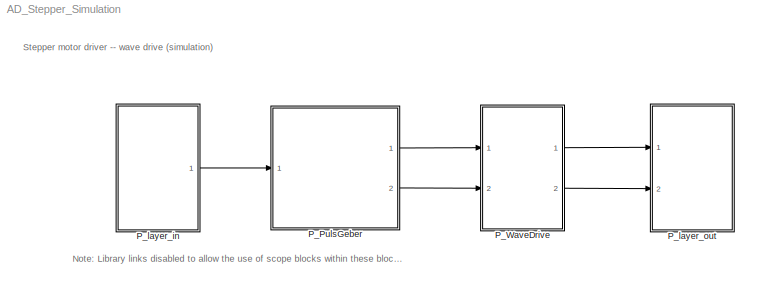
MODEL AD_Stepper_Simulation
KIND model
CONFIG InitFcn = Ts = 0.01;      % model sample time\nTmax = 0.5;   % maximum time per \"tick\"
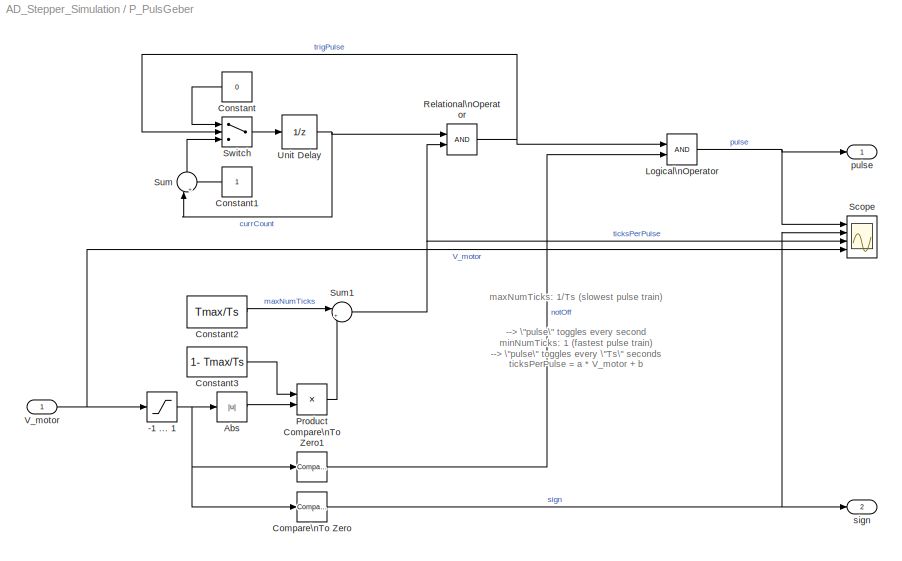
BLOCK [SubSystem] P_PulsGeber
  AncestorBlock = AD_Stepper_motor_lib/P_PulsGeber
  Ports = [1, 2]
  RequestExecContextInheritance = off
  SID = 133
  SystemSampleTime = Ts
  TreatAsAtomicUnit = on
BLOCK [Saturate] P_PulsGeber/-1 ... 1
  InputPortMap = u0
  LowerLimit = -1
  Ports = [1, 1]
  SID = 133:91
  UpperLimit = 1
BLOCK [Abs] P_PulsGeber/Abs
  SID = 133:92
  SaturateOnIntegerOverflow = off
BLOCK [Reference] P_PulsGeber/Compare\nTo Zero  REF=simulink/Logic and Bit\nOperations/Compare\nTo Zero
  FunctionWithSeparateData = off
  LogicOutDataTypeMode = boolean
  Ports = [1, 1]
  RTWMemSecDataConstants = Inherit from model
  RTWMemSecDataInternal = Inherit from model
  RTWMemSecDataParameters = Inherit from model
  RTWMemSecFuncExecute = Inherit from model
  RTWMemSecFuncInitTerm = Inherit from model
  SID = 133:93
  ShowPortLabels = FromPortIcon
  SourceBlock = simulink/Logic and Bit\nOperations/Compare\nTo Zero
  SourceProductBaseCode = SL
  SourceProductName = Simulink
  SourceType = Compare To Zero
  SystemSampleTime = -1
  ZeroCross = off
  relop = >=
BLOCK [Reference] P_PulsGeber/Compare\nTo Zero1  REF=simulink/Logic and Bit\nOperations/Compare\nTo Zero
  FunctionWithSeparateData = off
  LogicOutDataTypeMode = boolean
  Ports = [1, 1]
  RTWMemSecDataConstants = Inherit from model
  RTWMemSecDataInternal = Inherit from model
  RTWMemSecDataParameters = Inherit from model
  RTWMemSecFuncExecute = Inherit from model
  RTWMemSecFuncInitTerm = Inherit from model
  SID = 133:94
  ShowPortLabels = FromPortIcon
  SourceBlock = simulink/Logic and Bit\nOperations/Compare\nTo Zero
  SourceProductBaseCode = SL
  SourceProductName = Simulink
  SourceType = Compare To Zero
  SystemSampleTime = -1
  ZeroCross = off
  relop = ~=
BLOCK [Constant] P_PulsGeber/Constant
  SID = 133:95
  Value = 0
BLOCK [Constant] P_PulsGeber/Constant1
  SID = 133:96
BLOCK [Constant] P_PulsGeber/Constant2
  SID = 133:97
  Value = Tmax/Ts
BLOCK [Constant] P_PulsGeber/Constant3
  SID = 133:98
  Value = 1- Tmax/Ts
BLOCK [Logic] P_PulsGeber/Logical\nOperator
  AllPortsSameDT = off
  OutDataTypeStr = boolean
  Ports = [2, 1]
  SID = 133:99
BLOCK [Product] P_PulsGeber/Product
  InputSameDT = off
  OutDataTypeStr = Inherit: Inherit via internal rule
  Ports = [2, 1]
  SID = 133:100
  SaturateOnIntegerOverflow = off
BLOCK [RelationalOperator] P_PulsGeber/Relational\nOperator
  InputSameDT = off
  OutDataTypeStr = boolean
  Ports = [2, 1]
  SID = 133:101
BLOCK [Scope] P_PulsGeber/Scope
  Floating = off
  NumInputPorts = 4
  Ports = [4]
  SID = 133:102
  ScopeSpecificationString = C++SS(StrPVP('Location','[303, 71, 1063, 619]'),StrPVP('Open','off'),StrPVP('ZoomMode','xonly'),MxPVP('AxesTitles',54,'struct(''axes1'',''%<SignalLabel>'',''axes2'',''%<SignalLabel>'',''axes3'',''%<SignalLabel>'',''axes4'',''%<SignalLabel>'')'),StrPVP('TimeRange','10'),StrPVP('YMin','-1~-1~0~-1.5'),StrPVP('YMax','2~2~60~1.5'),StrPVP('DataFormat','StructureWithTime'),StrPVP('BlockParamSampleTime','...<+98ch>
BLOCK [Sum] P_PulsGeber/Sum
  IconShape = round
  InputSameDT = off
  Inputs = |++
  OutDataTypeStr = Inherit: Inherit via internal rule
  Ports = [2, 1]
  SID = 133:103
  SaturateOnIntegerOverflow = off
BLOCK [Sum] P_PulsGeber/Sum1
  IconShape = round
  InputSameDT = off
  Inputs = |++
  OutDataTypeStr = Inherit: Inherit via internal rule
  Ports = [2, 1]
  SID = 133:104
  SaturateOnIntegerOverflow = off
BLOCK [Switch] P_PulsGeber/Switch
  Criteria = u2 > Threshold
  InputSameDT = off
  SID = 133:105
  SaturateOnIntegerOverflow = off
BLOCK [UnitDelay] P_PulsGeber/Unit Delay
  SID = 133:106
  SampleTime = Ts
BLOCK [Inport] P_PulsGeber/V_motor
  IconDisplay = Port number
  SID = 133:90
BLOCK [Outport] P_PulsGeber/pulse
  IconDisplay = Port number
  SID = 133:107
BLOCK [Outport] P_PulsGeber/sign
  IconDisplay = Port number
  Port = 2
  SID = 133:108
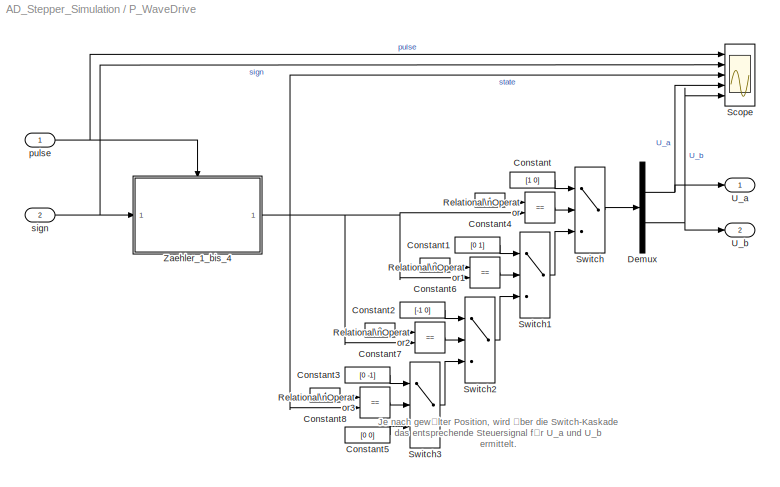
BLOCK [SubSystem] P_WaveDrive
  AncestorBlock = AD_Stepper_motor_lib/P_WaveDrive
  Ports = [2, 2]
  RequestExecContextInheritance = off
  SID = 134
  SystemSampleTime = Ts
  TreatAsAtomicUnit = on
BLOCK [Constant] P_WaveDrive/Constant
  SID = 134:53
  Value = [1 0]
BLOCK [Constant] P_WaveDrive/Constant1
  SID = 134:54
  Value = [0 1]
BLOCK [Constant] P_WaveDrive/Constant2
  SID = 134:55
  Value = [-1 0]
BLOCK [Constant] P_WaveDrive/Constant3
  SID = 134:56
  Value = [0 -1]
BLOCK [Constant] P_WaveDrive/Constant4
  SID = 134:57
BLOCK [Constant] P_WaveDrive/Constant5
  SID = 134:58
  Value = [0 0]
BLOCK [Constant] P_WaveDrive/Constant6
  SID = 134:59
  Value = 2
BLOCK [Constant] P_WaveDrive/Constant7
  SID = 134:60
  Value = 3
BLOCK [Constant] P_WaveDrive/Constant8
  SID = 134:61
  Value = 4
BLOCK [Demux] P_WaveDrive/Demux
  DisplayOption = bar
  Outputs = 2
  Ports = [1, 2]
  SID = 134:62
BLOCK [RelationalOperator] P_WaveDrive/Relational\nOperator
  InputSameDT = off
  Operator = ==
  OutDataTypeStr = boolean
  Ports = [2, 1]
  SID = 134:63
BLOCK [RelationalOperator] P_WaveDrive/Relational\nOperator1
  InputSameDT = off
  Operator = ==
  OutDataTypeStr = boolean
  Ports = [2, 1]
  SID = 134:64
BLOCK [RelationalOperator] P_WaveDrive/Relational\nOperator2
  InputSameDT = off
  Operator = ==
  OutDataTypeStr = boolean
  Ports = [2, 1]
  SID = 134:65
BLOCK [RelationalOperator] P_WaveDrive/Relational\nOperator3
  InputSameDT = off
  Operator = ==
  OutDataTypeStr = boolean
  Ports = [2, 1]
  SID = 134:66
BLOCK [Scope] P_WaveDrive/Scope
  Floating = off
  NumInputPorts = 5
  Ports = [5]
  SID = 134:67
  ScopeSpecificationString = C++SS(StrPVP('Location','[302, 70, 1063, 617]'),StrPVP('Open','off'),MxPVP('AxesTitles',54,'struct(''axes1'',''%<SignalLabel>'',''axes2'',''%<SignalLabel>'',''axes3'',''%<SignalLabel>'',''axes4'',''%<SignalLabel>'',''axes5'',''%<SignalLabel>'')'),StrPVP('TimeRange','10'),StrPVP('YMin','-1~-1~-0~-2~-2'),StrPVP('YMax','2~2~5~2~2'),StrPVP('SaveName','ScopeData2'),StrPVP('DataFormat','StructureWithTim...<+133ch>
BLOCK [Switch] P_WaveDrive/Switch
  Criteria = u2 ~= 0
  InputSameDT = off
  SID = 134:68
  SaturateOnIntegerOverflow = off
BLOCK [Switch] P_WaveDrive/Switch1
  Criteria = u2 ~= 0
  InputSameDT = off
  SID = 134:69
  SaturateOnIntegerOverflow = off
BLOCK [Switch] P_WaveDrive/Switch2
  Criteria = u2 ~= 0
  InputSameDT = off
  SID = 134:70
  SaturateOnIntegerOverflow = off
BLOCK [Switch] P_WaveDrive/Switch3
  Criteria = u2 ~= 0
  InputSameDT = off
  SID = 134:71
  SaturateOnIntegerOverflow = off
BLOCK [Outport] P_WaveDrive/U_a
  IconDisplay = Port number
  SID = 134:87
BLOCK [Outport] P_WaveDrive/U_b
  IconDisplay = Port number
  Port = 2
  SID = 134:88
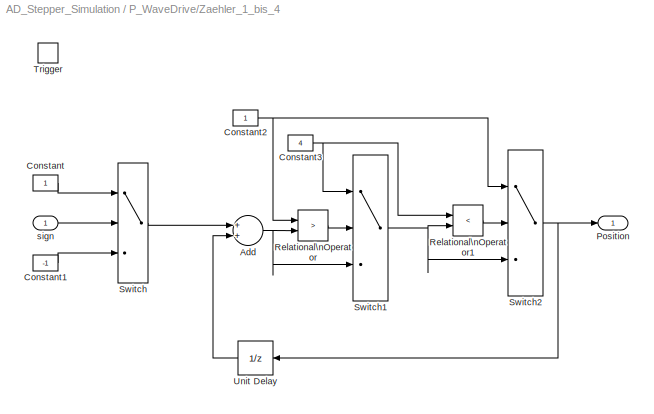
BLOCK [SubSystem] P_WaveDrive/Zaehler_1_bis_4
  Ports = [1, 1, 0, 1]
  RequestExecContextInheritance = off
  SID = 134:72
  TreatAsAtomicUnit = on
BLOCK [Sum] P_WaveDrive/Zaehler_1_bis_4/Add
  InputSameDT = off
  OutDataTypeStr = Inherit: Inherit via internal rule
  Ports = [2, 1]
  SID = 134:75
  SaturateOnIntegerOverflow = off
BLOCK [Constant] P_WaveDrive/Zaehler_1_bis_4/Constant
  SID = 134:76
BLOCK [Constant] P_WaveDrive/Zaehler_1_bis_4/Constant1
  SID = 134:77
  Value = -1
BLOCK [Constant] P_WaveDrive/Zaehler_1_bis_4/Constant2
  SID = 134:78
BLOCK [Constant] P_WaveDrive/Zaehler_1_bis_4/Constant3
  SID = 134:79
  Value = 4
BLOCK [Outport] P_WaveDrive/Zaehler_1_bis_4/Position
  IconDisplay = Port number
  SID = 134:86
BLOCK [RelationalOperator] P_WaveDrive/Zaehler_1_bis_4/Relational\nOperator
  InputSameDT = off
  Operator = >
  OutDataTypeStr = boolean
  Ports = [2, 1]
  SID = 134:80
BLOCK [RelationalOperator] P_WaveDrive/Zaehler_1_bis_4/Relational\nOperator1
  InputSameDT = off
  Operator = <
  OutDataTypeStr = boolean
  Ports = [2, 1]
  SID = 134:81
BLOCK [Switch] P_WaveDrive/Zaehler_1_bis_4/Switch
  Criteria = u2 ~= 0
  InputSameDT = off
  SID = 134:82
  SaturateOnIntegerOverflow = off
BLOCK [Switch] P_WaveDrive/Zaehler_1_bis_4/Switch1
  Criteria = u2 ~= 0
  InputSameDT = off
  SID = 134:83
  SaturateOnIntegerOverflow = off
BLOCK [Switch] P_WaveDrive/Zaehler_1_bis_4/Switch2
  Criteria = u2 ~= 0
  InputSameDT = off
  SID = 134:84
  SaturateOnIntegerOverflow = off
BLOCK [TriggerPort] P_WaveDrive/Zaehler_1_bis_4/Trigger
  Ports = []
  SID = 134:74
  StatesWhenEnabling = held
  VariantControl = (inherit)
BLOCK [UnitDelay] P_WaveDrive/Zaehler_1_bis_4/Unit Delay
  InitialCondition = 1
  SID = 134:85
  SampleTime = -1
BLOCK [Inport] P_WaveDrive/Zaehler_1_bis_4/sign
  IconDisplay = Port number
  SID = 134:73
BLOCK [Inport] P_WaveDrive/pulse
  IconDisplay = Port number
  SID = 134:51
BLOCK [Inport] P_WaveDrive/sign
  IconDisplay = Port number
  Port = 2
  SID = 134:52
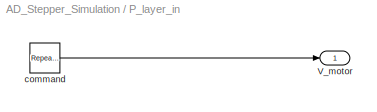
BLOCK [SubSystem] P_layer_in
  Ports = [0, 1]
  RequestExecContextInheritance = off
  SID = 59
  TreatAsAtomicUnit = on
BLOCK [Outport] P_layer_in/V_motor
  IconDisplay = Port number
  SID = 61
BLOCK [Reference] P_layer_in/command  REF=simulink/Sources/Repeating\nSequence
  FunctionWithSeparateData = off
  Ports = [0, 1]
  RTWMemSecDataConstants = Inherit from model
  RTWMemSecDataInternal = Inherit from model
  RTWMemSecDataParameters = Inherit from model
  RTWMemSecFuncExecute = Inherit from model
  RTWMemSecFuncInitTerm = Inherit from model
  SID = 83
  ShowPortLabels = FromPortIcon
  SourceBlock = simulink/Sources/Repeating\nSequence
  SourceProductBaseCode = SL
  SourceProductName = Simulink
  SourceType = Repeating table
  SystemSampleTime = -1
  rep_seq_t = [0:10]
  rep_seq_y = [0 0 -0.8 -0.8 0 0 0.5 0.9 0.8 0.2 0]
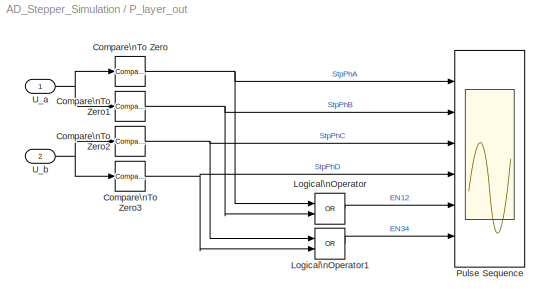
BLOCK [SubSystem] P_layer_out
  Ports = [2]
  RequestExecContextInheritance = off
  SID = 62
  SystemSampleTime = Ts
  TreatAsAtomicUnit = on
BLOCK [Reference] P_layer_out/Compare\nTo Zero  REF=simulink/Logic and Bit\nOperations/Compare\nTo Zero
  FunctionWithSeparateData = off
  LogicOutDataTypeMode = boolean
  Ports = [1, 1]
  RTWMemSecDataConstants = Inherit from model
  RTWMemSecDataInternal = Inherit from model
  RTWMemSecDataParameters = Inherit from model
  RTWMemSecFuncExecute = Inherit from model
  RTWMemSecFuncInitTerm = Inherit from model
  SID = 65
  ShowPortLabels = FromPortIcon
  SourceBlock = simulink/Logic and Bit\nOperations/Compare\nTo Zero
  SourceProductBaseCode = SL
  SourceProductName = Simulink
  SourceType = Compare To Zero
  SystemSampleTime = -1
  ZeroCross = off
  relop = >
BLOCK [Reference] P_layer_out/Compare\nTo Zero1  REF=simulink/Logic and Bit\nOperations/Compare\nTo Zero
  FunctionWithSeparateData = off
  LogicOutDataTypeMode = boolean
  Ports = [1, 1]
  RTWMemSecDataConstants = Inherit from model
  RTWMemSecDataInternal = Inherit from model
  RTWMemSecDataParameters = Inherit from model
  RTWMemSecFuncExecute = Inherit from model
  RTWMemSecFuncInitTerm = Inherit from model
  SID = 66
  ShowPortLabels = FromPortIcon
  SourceBlock = simulink/Logic and Bit\nOperations/Compare\nTo Zero
  SourceProductBaseCode = SL
  SourceProductName = Simulink
  SourceType = Compare To Zero
  SystemSampleTime = -1
  ZeroCross = off
  relop = <
BLOCK [Reference] P_layer_out/Compare\nTo Zero2  REF=simulink/Logic and Bit\nOperations/Compare\nTo Zero
  FunctionWithSeparateData = off
  LogicOutDataTypeMode = boolean
  Ports = [1, 1]
  RTWMemSecDataConstants = Inherit from model
  RTWMemSecDataInternal = Inherit from model
  RTWMemSecDataParameters = Inherit from model
  RTWMemSecFuncExecute = Inherit from model
  RTWMemSecFuncInitTerm = Inherit from model
  SID = 67
  ShowPortLabels = FromPortIcon
  SourceBlock = simulink/Logic and Bit\nOperations/Compare\nTo Zero
  SourceProductBaseCode = SL
  SourceProductName = Simulink
  SourceType = Compare To Zero
  SystemSampleTime = -1
  ZeroCross = off
  relop = >
BLOCK [Reference] P_layer_out/Compare\nTo Zero3  REF=simulink/Logic and Bit\nOperations/Compare\nTo Zero
  FunctionWithSeparateData = off
  LogicOutDataTypeMode = boolean
  Ports = [1, 1]
  RTWMemSecDataConstants = Inherit from model
  RTWMemSecDataInternal = Inherit from model
  RTWMemSecDataParameters = Inherit from model
  RTWMemSecFuncExecute = Inherit from model
  RTWMemSecFuncInitTerm = Inherit from model
  SID = 68
  ShowPortLabels = FromPortIcon
  SourceBlock = simulink/Logic and Bit\nOperations/Compare\nTo Zero
  SourceProductBaseCode = SL
  SourceProductName = Simulink
  SourceType = Compare To Zero
  SystemSampleTime = -1
  ZeroCross = off
  relop = <
BLOCK [Logic] P_layer_out/Logical\nOperator
  AllPortsSameDT = off
  Operator = OR
  OutDataTypeStr = boolean
  Ports = [2, 1]
  SID = 75
BLOCK [Logic] P_layer_out/Logical\nOperator1
  AllPortsSameDT = off
  Operator = OR
  OutDataTypeStr = boolean
  Ports = [2, 1]
  SID = 76
BLOCK [Scope] P_layer_out/Pulse Sequence
  Floating = off
  NumInputPorts = 6
  Ports = [6]
  SID = 77
  ScopeSpecificationString = C++SS(StrPVP('Location','[302, 71, 1062, 617]'),StrPVP('Open','off'),MxPVP('AxesTitles',54,'struct(''axes1'',''%<SignalLabel>'',''axes2'',''%<SignalLabel>'',''axes3'',''%<SignalLabel>'',''axes4'',''%<SignalLabel>'',''axes5'',''%<SignalLabel>'',''axes6'',''%<SignalLabel>'')'),StrPVP('TimeRange','10'),StrPVP('YMin','-1~-1~-1~-1~-1~-1'),StrPVP('YMax','2~2~2~2~2~2'),StrPVP('SaveName','ScopeData1'),Str...<+167ch>
BLOCK [Inport] P_layer_out/U_a
  IconDisplay = Port number
  SID = 63
BLOCK [Inport] P_layer_out/U_b
  IconDisplay = Port number
  Port = 2
  SID = 64
ANNOTATION (root): Note: Library links disabled to allow the use of scope blocks within these blocks
ANNOTATION (root): Stepper motor driver -- wave drive (simulation)
ANNOTATION P_PulsGeber: \n\n\n\n\n\n\n\n\n\n \n\n\n
ANNOTATION P_PulsGeber: \n\n\n\n\n\n\n\n\n\n\n
ANNOTATION P_PulsGeber: maxNumTicks: 1/Ts (slowest pulse train)\n--> \"pulse\" toggles every second\nminNumTicks: 1 (fastest pulse train)\n--> \"pulse\" toggles every \"Ts\" seconds\n\nticksPerPulse = a * V_motor + b\n\n(1): V_motor = 0 (min)\n ticksPerPulse = 1/Ts (max)\n(2): V_motor = 1 (max)\n ticksPerPulse = 1 (min)\n\n(1): 1/Ts = b\n(2): 1 = a * 1 + b a = 1 - 1/Ts\n\nticksPerPulse = (1 - 1/Ts) * V_motor + 1/Ts
ANNOTATION P_WaveDrive: Je nach gewälter Position, wird über die Switch-Kaskade\ndas entsprechende Steuersignal für U_a und U_b\nermittelt.
NET P_PulsGeber/-1 ... 1:1 -> P_PulsGeber/Abs:1, P_PulsGeber/Compare\nTo Zero1:1, P_PulsGeber/Compare\nTo Zero:1
LINE P_PulsGeber/Abs:1 -> P_PulsGeber/Product:2
LINE P_PulsGeber/Compare\nTo Zero1:1 -> P_PulsGeber/Logical\nOperator:2
NET P_PulsGeber/Compare\nTo Zero:1 -> P_PulsGeber/Scope:2, P_PulsGeber/sign:1
LINE P_PulsGeber/Constant1:1 -> P_PulsGeber/Sum:2
LINE P_PulsGeber/Constant2:1 -> P_PulsGeber/Sum1:1
LINE P_PulsGeber/Constant3:1 -> P_PulsGeber/Product:1
LINE P_PulsGeber/Constant:1 -> P_PulsGeber/Switch:1
NET P_PulsGeber/Logical\nOperator:1 -> P_PulsGeber/Scope:1, P_PulsGeber/pulse:1
LINE P_PulsGeber/Product:1 -> P_PulsGeber/Sum1:2
NET P_PulsGeber/Relational\nOperator:1 -> P_PulsGeber/Logical\nOperator:1, P_PulsGeber/Switch:2
NET P_PulsGeber/Sum1:1 -> P_PulsGeber/Relational\nOperator:2, P_PulsGeber/Scope:3
LINE P_PulsGeber/Sum:1 -> P_PulsGeber/Switch:3
LINE P_PulsGeber/Switch:1 -> P_PulsGeber/Unit Delay:1
NET P_PulsGeber/Unit Delay:1 -> P_PulsGeber/Relational\nOperator:1, P_PulsGeber/Sum:1
NET P_PulsGeber/V_motor:1 -> P_PulsGeber/-1 ... 1:1, P_PulsGeber/Scope:4
LINE P_PulsGeber:1 -> P_WaveDrive:1
LINE P_PulsGeber:2 -> P_WaveDrive:2
LINE P_WaveDrive/Constant1:1 -> P_WaveDrive/Switch1:1
LINE P_WaveDrive/Constant2:1 -> P_WaveDrive/Switch2:1
LINE P_WaveDrive/Constant3:1 -> P_WaveDrive/Switch3:1
LINE P_WaveDrive/Constant4:1 -> P_WaveDrive/Relational\nOperator:1
LINE P_WaveDrive/Constant5:1 -> P_WaveDrive/Switch3:3
LINE P_WaveDrive/Constant6:1 -> P_WaveDrive/Relational\nOperator1:1
LINE P_WaveDrive/Constant7:1 -> P_WaveDrive/Relational\nOperator2:1
LINE P_WaveDrive/Constant8:1 -> P_WaveDrive/Relational\nOperator3:1
LINE P_WaveDrive/Constant:1 -> P_WaveDrive/Switch:1
NET P_WaveDrive/Demux:1 -> P_WaveDrive/Scope:4, P_WaveDrive/U_a:1
NET P_WaveDrive/Demux:2 -> P_WaveDrive/Scope:5, P_WaveDrive/U_b:1
LINE P_WaveDrive/Relational\nOperator1:1 -> P_WaveDrive/Switch1:2
LINE P_WaveDrive/Relational\nOperator2:1 -> P_WaveDrive/Switch2:2
LINE P_WaveDrive/Relational\nOperator3:1 -> P_WaveDrive/Switch3:2
LINE P_WaveDrive/Relational\nOperator:1 -> P_WaveDrive/Switch:2
LINE P_WaveDrive/Switch1:1 -> P_WaveDrive/Switch:3
LINE P_WaveDrive/Switch2:1 -> P_WaveDrive/Switch1:3
LINE P_WaveDrive/Switch3:1 -> P_WaveDrive/Switch2:3
LINE P_WaveDrive/Switch:1 -> P_WaveDrive/Demux:1
NET P_WaveDrive/Zaehler_1_bis_4/Add:1 -> P_WaveDrive/Zaehler_1_bis_4/Relational\nOperator:2, P_WaveDrive/Zaehler_1_bis_4/Switch1:3
LINE P_WaveDrive/Zaehler_1_bis_4/Constant1:1 -> P_WaveDrive/Zaehler_1_bis_4/Switch:3
NET P_WaveDrive/Zaehler_1_bis_4/Constant2:1 -> P_WaveDrive/Zaehler_1_bis_4/Relational\nOperator:1, P_WaveDrive/Zaehler_1_bis_4/Switch2:1
NET P_WaveDrive/Zaehler_1_bis_4/Constant3:1 -> P_WaveDrive/Zaehler_1_bis_4/Relational\nOperator1:1, P_WaveDrive/Zaehler_1_bis_4/Switch1:1
LINE P_WaveDrive/Zaehler_1_bis_4/Constant:1 -> P_WaveDrive/Zaehler_1_bis_4/Switch:1
LINE P_WaveDrive/Zaehler_1_bis_4/Relational\nOperator1:1 -> P_WaveDrive/Zaehler_1_bis_4/Switch2:2
LINE P_WaveDrive/Zaehler_1_bis_4/Relational\nOperator:1 -> P_WaveDrive/Zaehler_1_bis_4/Switch1:2
NET P_WaveDrive/Zaehler_1_bis_4/Switch1:1 -> P_WaveDrive/Zaehler_1_bis_4/Relational\nOperator1:2, P_WaveDrive/Zaehler_1_bis_4/Switch2:3
NET P_WaveDrive/Zaehler_1_bis_4/Switch2:1 -> P_WaveDrive/Zaehler_1_bis_4/Position:1, P_WaveDrive/Zaehler_1_bis_4/Unit Delay:1
LINE P_WaveDrive/Zaehler_1_bis_4/Switch:1 -> P_WaveDrive/Zaehler_1_bis_4/Add:1
LINE P_WaveDrive/Zaehler_1_bis_4/Unit Delay:1 -> P_WaveDrive/Zaehler_1_bis_4/Add:2
LINE P_WaveDrive/Zaehler_1_bis_4/sign:1 -> P_WaveDrive/Zaehler_1_bis_4/Switch:2
NET P_WaveDrive/Zaehler_1_bis_4:1 -> P_WaveDrive/Relational\nOperator1:2, P_WaveDrive/Relational\nOperator2:2, P_WaveDrive/Relational\nOperator3:2, P_WaveDrive/Relational\nOperator:2, P_WaveDrive/Scope:3
NET P_WaveDrive/pulse:1 -> P_WaveDrive/Scope:1, P_WaveDrive/Zaehler_1_bis_4:trigger
NET P_WaveDrive/sign:1 -> P_WaveDrive/Scope:2, P_WaveDrive/Zaehler_1_bis_4:1
LINE P_WaveDrive:1 -> P_layer_out:1
LINE P_WaveDrive:2 -> P_layer_out:2
LINE P_layer_in/command:1 -> P_layer_in/V_motor:1
LINE P_layer_in:1 -> P_PulsGeber:1
NET P_layer_out/Compare\nTo Zero1:1 -> P_layer_out/Logical\nOperator:2, P_layer_out/Pulse Sequence:2
NET P_layer_out/Compare\nTo Zero2:1 -> P_layer_out/Logical\nOperator1:1, P_layer_out/Pulse Sequence:3
NET P_layer_out/Compare\nTo Zero3:1 -> P_layer_out/Logical\nOperator1:2, P_layer_out/Pulse Sequence:4
NET P_layer_out/Compare\nTo Zero:1 -> P_layer_out/Logical\nOperator:1, P_layer_out/Pulse Sequence:1
LINE P_layer_out/Logical\nOperator1:1 -> P_layer_out/Pulse Sequence:6
LINE P_layer_out/Logical\nOperator:1 -> P_layer_out/Pulse Sequence:5
NET P_layer_out/U_a:1 -> P_layer_out/Compare\nTo Zero1:1, P_layer_out/Compare\nTo Zero:1
NET P_layer_out/U_b:1 -> P_layer_out/Compare\nTo Zero2:1, P_layer_out/Compare\nTo Zero3:1
note: NET lines group one-source signal fan-out (src -> all destinations, sorted); 1:1 wires keep LINE
